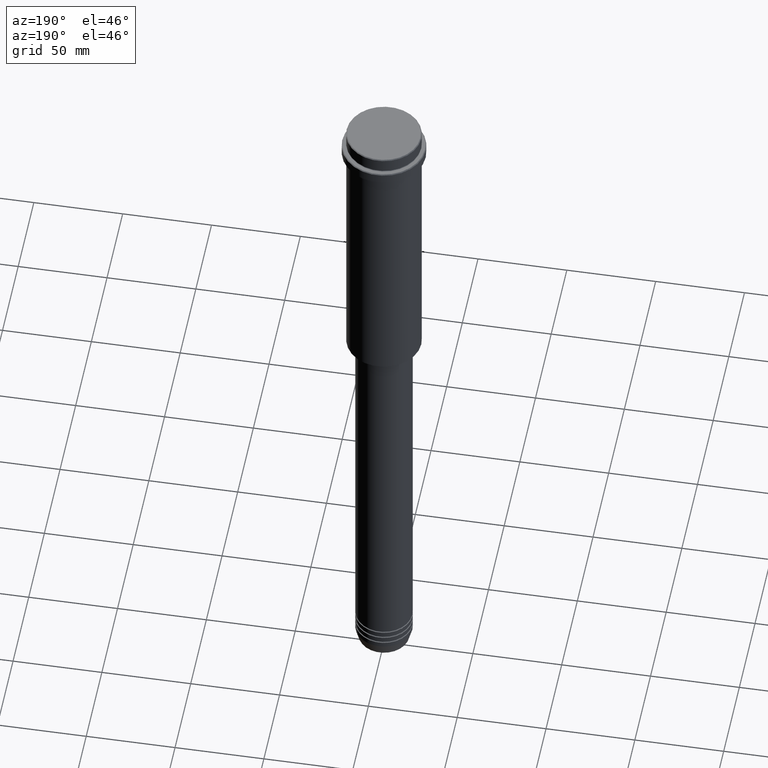
[diagram: clean part render]
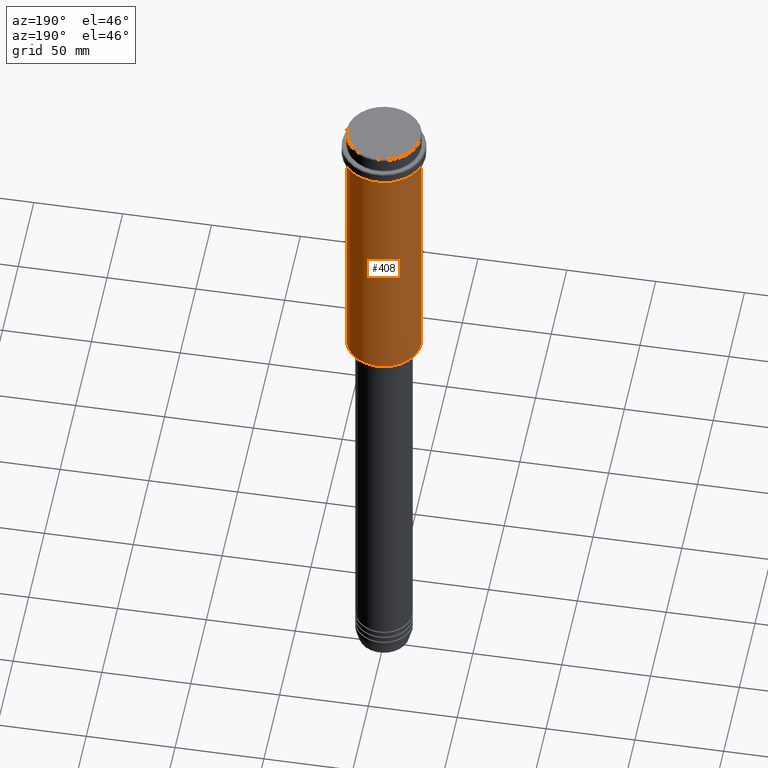
[diagram: same view with one face highlighted and labeled with its STEP entity id]
A machine part, auxiliary view. The second image highlights one B-rep face of the part: STEP entity #408.
In plain terms, the highlighted cylindrical surface (partial cylindrical patch) has radius 21 mm, axis along (-0, -0, 1).
Its self-contained STEP definition (entity closure, byte-faithful):
#19 = DIRECTION ( 'NONE',  ( -0.000000000000000000, -0.000000000000000000, 1.000000000000000000 ) ) ;
#43 = CARTESIAN_POINT ( 'NONE',  ( -20.99999999999999645, 2.571758278209441267E-15, -16.00000000000000355 ) ) ;
#55 = CARTESIAN_POINT ( 'NONE',  ( -20.99999999999999645, 2.571758278209441267E-15, -164.4999999999999147 ) ) ;
#94 = AXIS2_PLACEMENT_3D ( 'NONE', #1124, #874, #458 ) ;
#124 = CYLINDRICAL_SURFACE ( 'NONE', #94, 20.99999999999999645 ) ;
#132 = ORIENTED_EDGE ( 'NONE', *, *, #623, .T. ) ;
#136 = DIRECTION ( 'NONE',  ( 1.000000000000000000, 0.000000000000000000, 0.000000000000000000 ) ) ;
#314 = VERTEX_POINT ( 'NONE', #949 ) ;
#408 = ADVANCED_FACE ( 'NONE', ( #1235 ), #124, .T. ) ;
#424 = DIRECTION ( 'NONE',  ( -0.000000000000000000, -0.000000000000000000, 1.000000000000000000 ) ) ;
#458 = DIRECTION ( 'NONE',  ( 1.000000000000000000, 0.000000000000000000, 0.000000000000000000 ) ) ;
#498 = VERTEX_POINT ( 'NONE', #55 ) ;
#537 = VERTEX_POINT ( 'NONE', #707 ) ;
#538 = CARTESIAN_POINT ( 'NONE',  ( -20.99999999999999645, 2.571758278209441267E-15, 0.000000000000000000 ) ) ;
#554 = CIRCLE ( 'NONE', #1017, 20.99999999999999645 ) ;
#575 = VERTEX_POINT ( 'NONE', #43 ) ;
#623 = EDGE_CURVE ( 'NONE', #537, #498, #554, .T. ) ;
#628 = DIRECTION ( 'NONE',  ( -0.000000000000000000, -0.000000000000000000, 1.000000000000000000 ) ) ;
#652 = AXIS2_PLACEMENT_3D ( 'NONE', #872, #19, #136 ) ;
#670 = EDGE_LOOP ( 'NONE', ( #132, #1223, #1172, #797 ) ) ;
#707 = CARTESIAN_POINT ( 'NONE',  ( 20.99999999999999645, 0.000000000000000000, -164.4999999999999147 ) ) ;
#738 = EDGE_CURVE ( 'NONE', #314, #575, #1064, .T. ) ;
#773 = DIRECTION ( 'NONE',  ( -0.000000000000000000, -0.000000000000000000, 1.000000000000000000 ) ) ;
#797 = ORIENTED_EDGE ( 'NONE', *, *, #838, .F. ) ;
#811 = VECTOR ( 'NONE', #773, 1000.000000000000000 ) ;
#838 = EDGE_CURVE ( 'NONE', #537, #314, #901, .T. ) ;
#872 = CARTESIAN_POINT ( 'NONE',  ( 0.000000000000000000, 0.000000000000000000, -16.00000000000000355 ) ) ;
#874 = DIRECTION ( 'NONE',  ( -0.000000000000000000, -0.000000000000000000, 1.000000000000000000 ) ) ;
#901 = LINE ( 'NONE', #1325, #811 ) ;
#949 = CARTESIAN_POINT ( 'NONE',  ( 20.99999999999999645, 0.000000000000000000, -16.00000000000000355 ) ) ;
#978 = DIRECTION ( 'NONE',  ( -1.000000000000000000, 0.000000000000000000, 0.000000000000000000 ) ) ;
#1017 = AXIS2_PLACEMENT_3D ( 'NONE', #1191, #628, #978 ) ;
#1064 = CIRCLE ( 'NONE', #652, 20.99999999999999645 ) ;
#1077 = LINE ( 'NONE', #538, #1089 ) ;
#1089 = VECTOR ( 'NONE', #424, 1000.000000000000000 ) ;
#1124 = CARTESIAN_POINT ( 'NONE',  ( 0.000000000000000000, 0.000000000000000000, 0.000000000000000000 ) ) ;
#1157 = EDGE_CURVE ( 'NONE', #498, #575, #1077, .T. ) ;
#1172 = ORIENTED_EDGE ( 'NONE', *, *, #738, .F. ) ;
#1191 = CARTESIAN_POINT ( 'NONE',  ( 0.000000000000000000, 0.000000000000000000, -164.4999999999999147 ) ) ;
#1223 = ORIENTED_EDGE ( 'NONE', *, *, #1157, .T. ) ;
#1235 = FACE_OUTER_BOUND ( 'NONE', #670, .T. ) ;
#1325 = CARTESIAN_POINT ( 'NONE',  ( 20.99999999999999645, 0.000000000000000000, 0.000000000000000000 ) ) ;